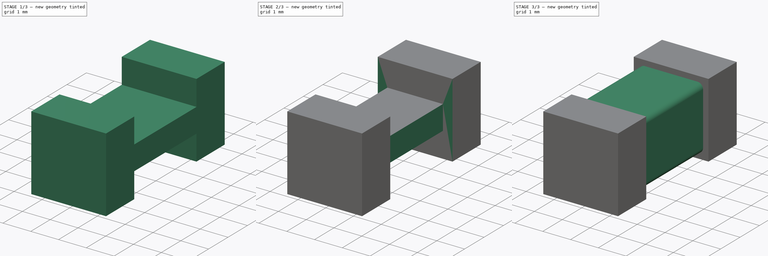
[diagram: build sequence overview — one tinted view per stage of 3, left to right]
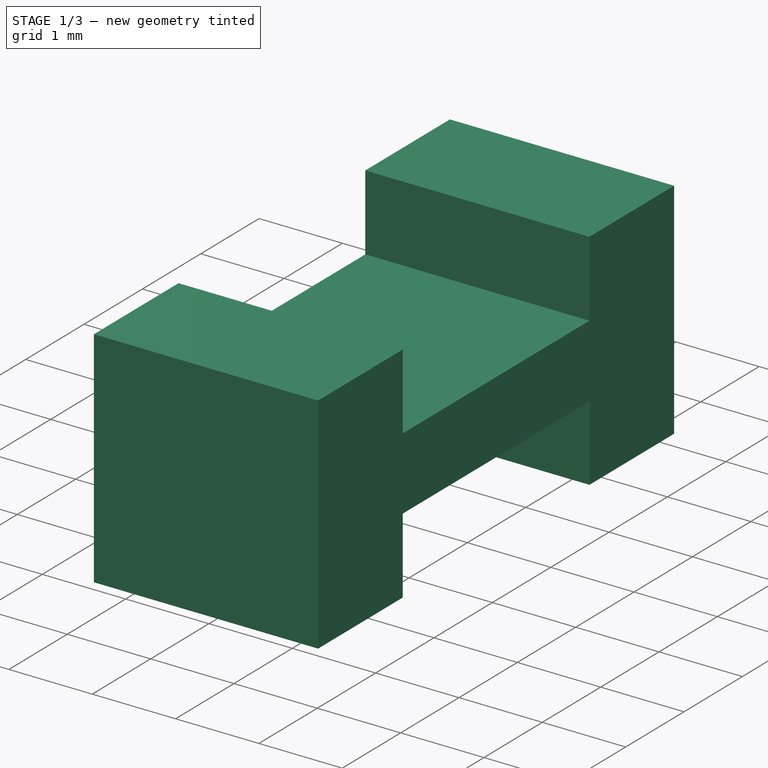
[diagram: stage 1 of 3 — iso view after this stage's code; geometry added in this stage tinted green]
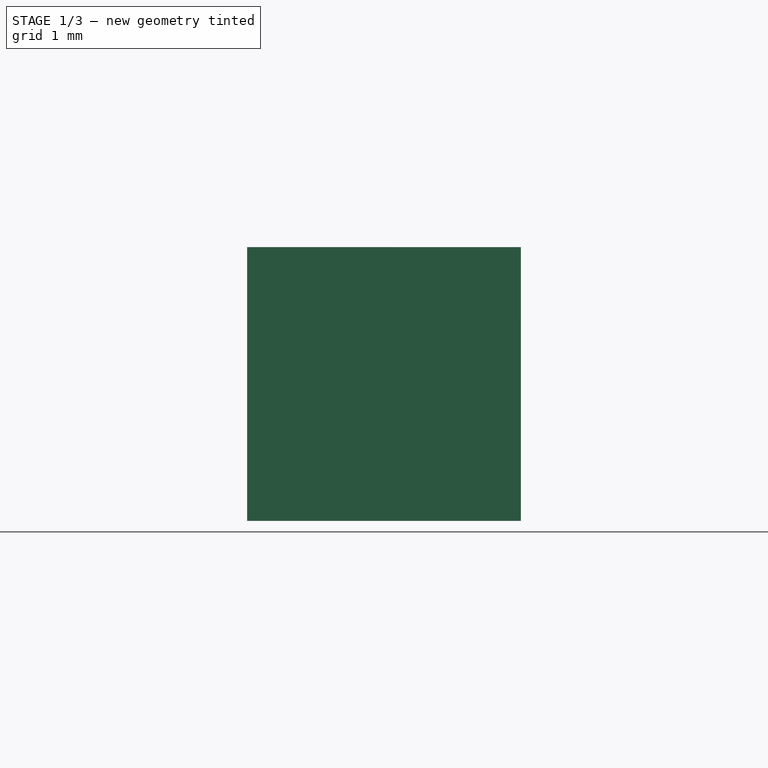
[diagram: stage 1 of 3 — front view after this stage's code; geometry added in this stage tinted green]
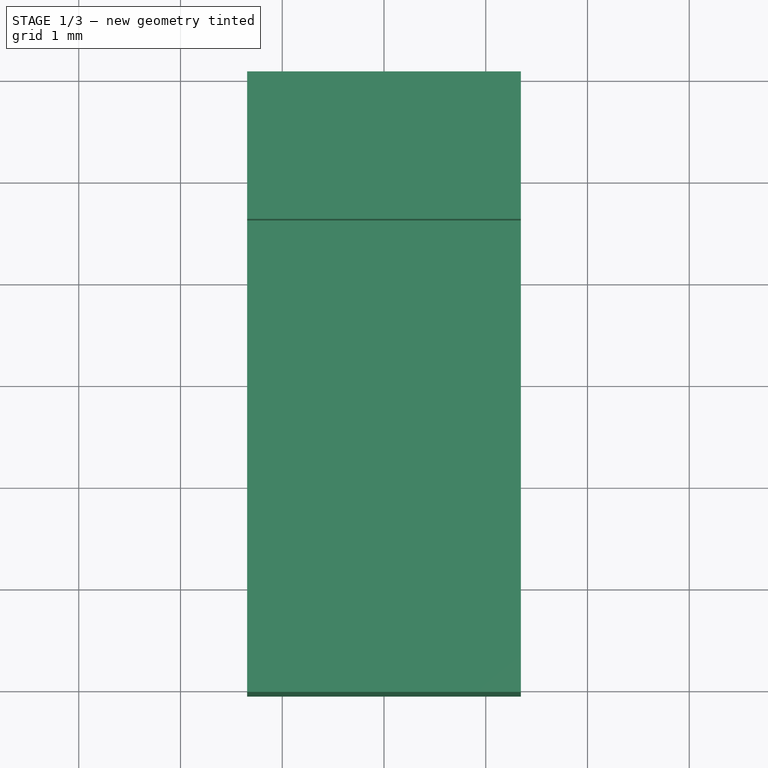
[diagram: stage 1 of 3 — top view after this stage's code; geometry added in this stage tinted green]
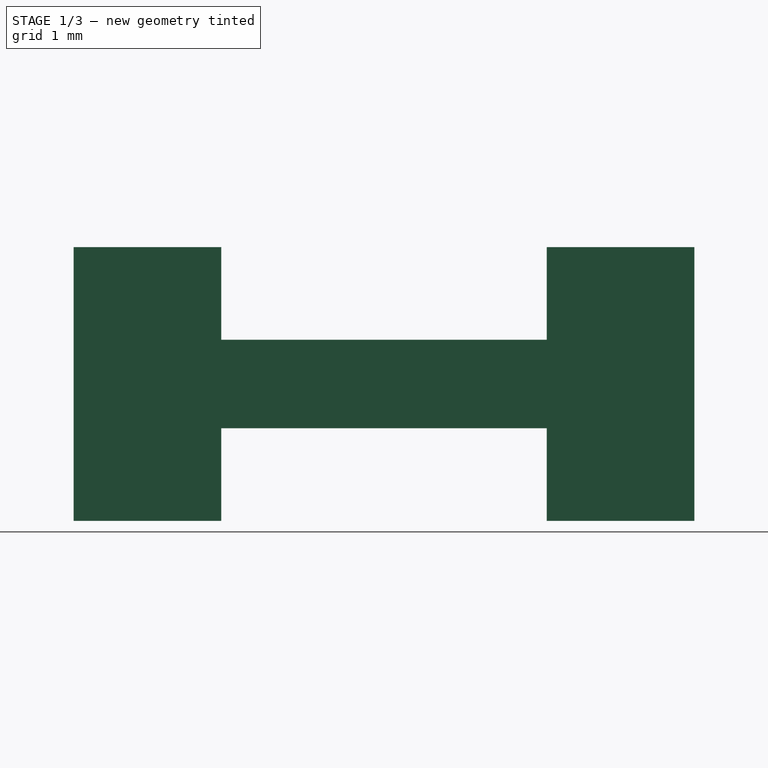
[diagram: stage 1 of 3 — right view after this stage's code; geometry added in this stage tinted green]
FCSTD DOCUMENT  (FreeCAD 0.19R)
Label: fusible
License: All rights reserved
LicenseURL: http://en.wikipedia.org/wiki/All_rights_reserved
objects: PartDesign::Mirrored×4, Sketcher::SketchObject×3, PartDesign::Pad×2, PartDesign::Body×2, PartDesign::MultiTransform×2, PartDesign::Fillet×1, PartDesign::Pocket×1, App::Part×1
note: 19 computed .brp shape members not serialized (recipe doc carries the construction recipe); baked Part::Feature solids carry a one-line shape summary decoded from their .brp

FEATURE [PartDesign::Body] Body
  Group = -> [Sketch,Pad,Fillet]
  Origin = -> Origin001
  Tip = -> Fillet
FEATURE [Sketcher::SketchObject] Sketch001
  FullyConstrained = true
  MapMode = 5
  Placement = pos=(0,0,0) rot=(0.57735,0.57735,0.57735;2.0944rad)
  Support = -> [YZ_Plane002]
  sketch-geometry (6):
    g0: LineSegment StartX=0 StartY=0 StartZ=0 EndX=-3.05 EndY=0 EndZ=0
    g1: LineSegment StartX=-3.05 StartY=0 StartZ=0 EndX=-3.05 EndY=1.345 EndZ=0
    g2: LineSegment StartX=-3.05 StartY=1.345 StartZ=0 EndX=-1.6 EndY=1.345 EndZ=0
    g3: LineSegment StartX=-1.6 StartY=1.345 StartZ=0 EndX=-1.6 EndY=0.435 EndZ=0
    g4: LineSegment StartX=-1.6 StartY=0.435 StartZ=0 EndX=0 EndY=0.435 EndZ=0
    g5: LineSegment StartX=0 StartY=0.435 StartZ=0 EndX=0 EndY=0 EndZ=0
  constraints (17):
    c: Coincident(g-1,g0)
    c: PointOnObject(g0,g-1)
    c: Coincident(g0,g1)
    c: Vertical(g1)
    c: Coincident(g1,g2)
    c: Horizontal(g2)
    c: Coincident(g2,g3)
    c: Vertical(g3)
    c: Coincident(g3,g4)
    c: PointOnObject(g4,g-2)
    c: Horizontal(g4)
    c: Coincident(g4,g5)
    c: Coincident(g5,g0)
    c: Distance(g2) = 1.45
    c: Distance(g1) = 1.345
    c: DistanceX(g3) = -1.6
    c: Distance(g3) = 0.91
FEATURE [PartDesign::Pad] Pad001
  Direction = (1,1,1)
  Length = 2.69
  Length2 = 100
  Midplane = true
  Placement = pos=(0,0,0) rot=(0.57735,0.57735,0.57735;2.0944rad)
  Profile = -> Sketch001
  Type = 0
FEATURE [Sketcher::SketchObject] Sketch002
  FullyConstrained = true
  MapMode = 5
  Placement = pos=(0,0,0) rot=(1,0,0;1.5708rad)
  Support = -> [XZ_Plane002]
  sketch-geometry (4):
    g0: LineSegment StartX=-1.4 StartY=1.15 StartZ=0 EndX=-1 EndY=1.15 EndZ=0
    g1: LineSegment StartX=-1 StartY=1.15 StartZ=0 EndX=-1 EndY=-1.15 EndZ=0
    g2: LineSegment StartX=-1 StartY=-1.15 StartZ=0 EndX=-1.4 EndY=-1.15 EndZ=0
    g3: LineSegment StartX=-1.4 StartY=-1.15 StartZ=0 EndX=-1.4 EndY=1.15 EndZ=0
  constraints (11):
    c: Coincident(g0,g1)
    c: Coincident(g1,g2)
    c: Coincident(g2,g3)
    c: Coincident(g3,g0)
    c: Horizontal(g0)
    c: Horizontal(g2)
    c: Vertical(g1)
    c: DistanceX(g1) = -1
    c: DistanceX(g2,g2) = 0.4
    c: Symmetric(g0,g2,g-1)
    c: Distance(g3) = 2.3
FEATURE [PartDesign::Mirrored] Mirrored
  MirrorPlane = -> Sketch001 [V_Axis]
  Placement = pos=(0,0,0) rot=(0.57735,0.57735,0.57735;2.0944rad)
FEATURE [PartDesign::Mirrored] Mirrored001
  MirrorPlane = -> XY_Plane002
  Placement = pos=(0,0,0) rot=(0.57735,0.57735,0.57735;2.0944rad)
FEATURE [PartDesign::MultiTransform] MultiTransform
  BaseFeature = -> Pad001
  Originals = -> [Pad001]
  Placement = pos=(0,0,0) rot=(0.57735,0.57735,0.57735;2.0944rad)
  Transformations = -> [Mirrored,Mirrored001]
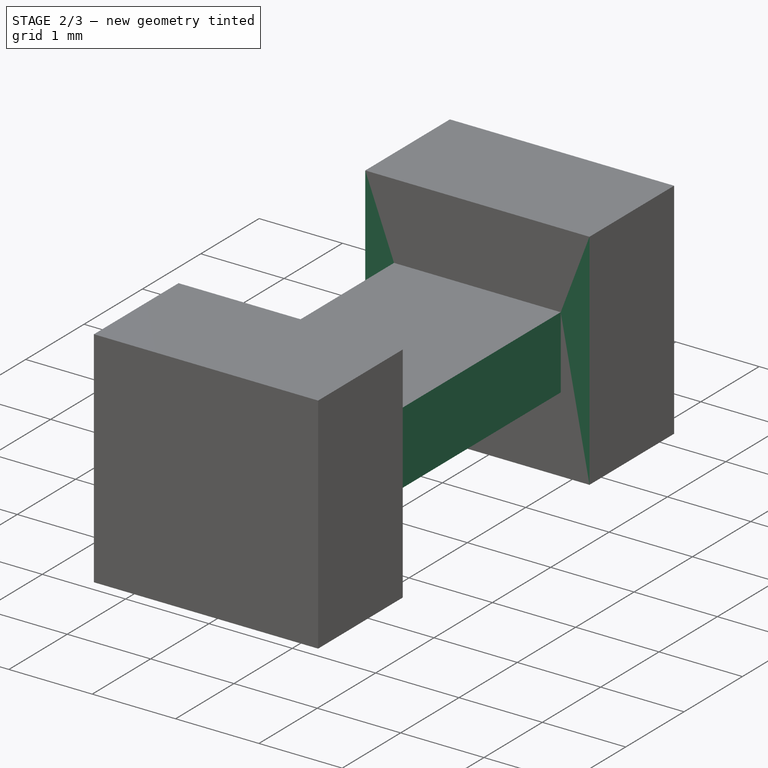
[diagram: stage 2 of 3 — iso view after this stage's code; geometry added in this stage tinted green]
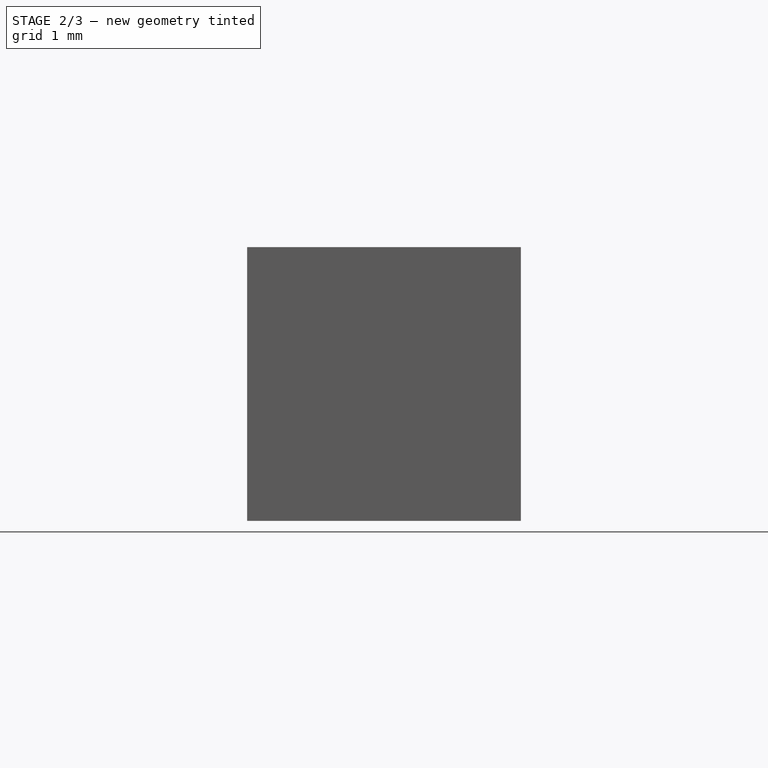
[diagram: stage 2 of 3 — front view after this stage's code; geometry added in this stage tinted green]
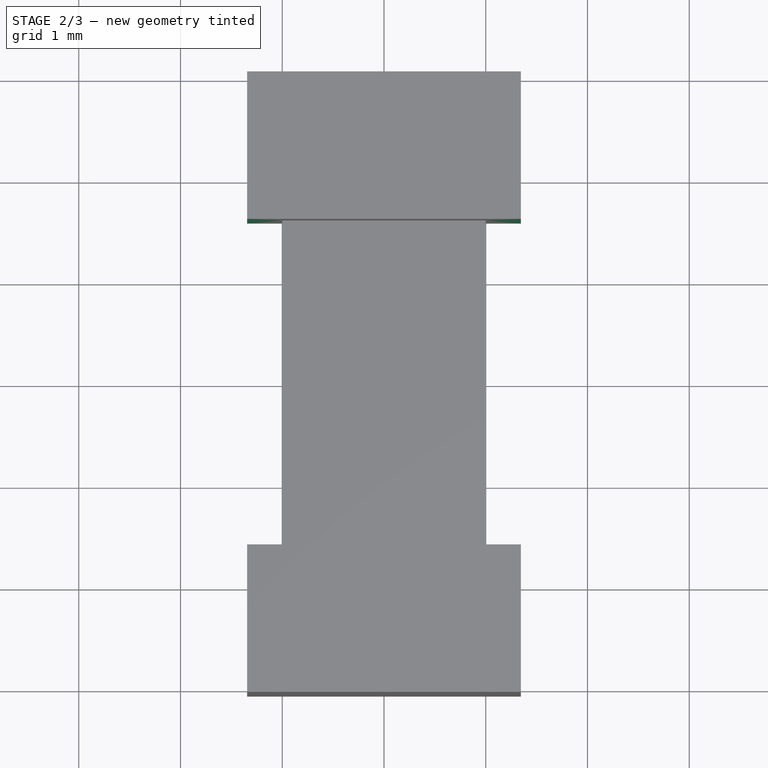
[diagram: stage 2 of 3 — top view after this stage's code; geometry added in this stage tinted green]
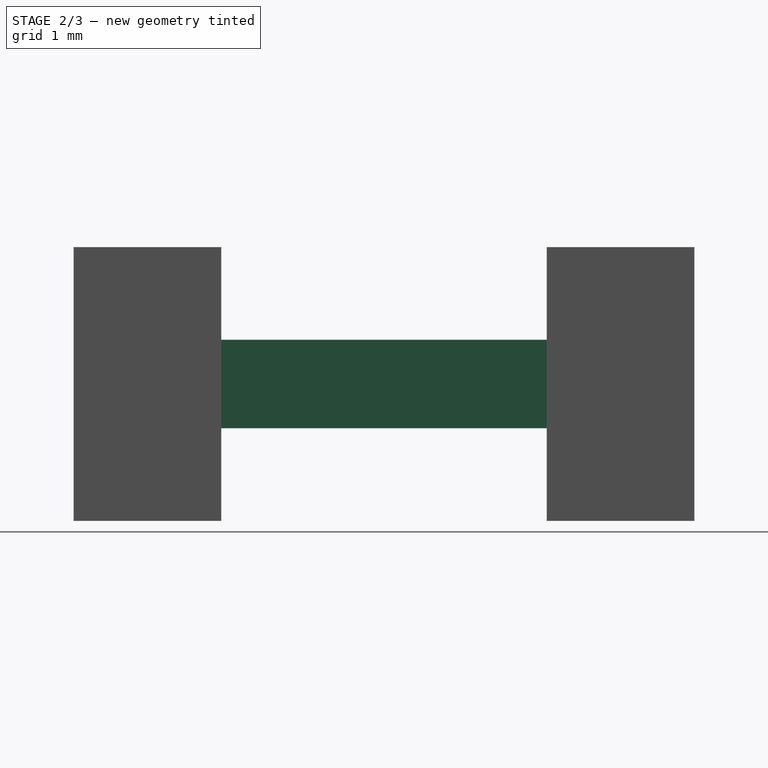
[diagram: stage 2 of 3 — right view after this stage's code; geometry added in this stage tinted green]
FEATURE [PartDesign::Pocket] Pocket
  BaseFeature = -> MultiTransform
  Length = 1.6
  Length2 = 100
  Placement = pos=(0,0,0) rot=(0.57735,0.57735,0.57735;2.0944rad)
  Profile = -> Sketch002
  Type = 0
FEATURE [PartDesign::Mirrored] Mirrored002
  MirrorPlane = -> Sketch002 [V_Axis]
  Placement = pos=(0,0,0) rot=(0.57735,0.57735,0.57735;2.0944rad)
FEATURE [PartDesign::Mirrored] Mirrored003
  MirrorPlane = -> XZ_Plane002
  Placement = pos=(0,0,0) rot=(0.57735,0.57735,0.57735;2.0944rad)
FEATURE [PartDesign::MultiTransform] MultiTransform001
  BaseFeature = -> Pocket
  Originals = -> [Pocket]
  Placement = pos=(0,0,0) rot=(0.57735,0.57735,0.57735;2.0944rad)
  Refine = true
  Transformations = -> [Mirrored002,Mirrored003]
FEATURE [PartDesign::Body] Body001
  Group = -> [Sketch001,Pad001,Sketch002,MultiTransform,Mirrored,Mirrored001,Pocket,MultiTransform001,Mirrored002,Mirrored003]
  Origin = -> Origin002
  Tip = -> MultiTransform001
FEATURE [App::Part] Part
  Group = -> [Body,Body001]
  Origin = -> Origin
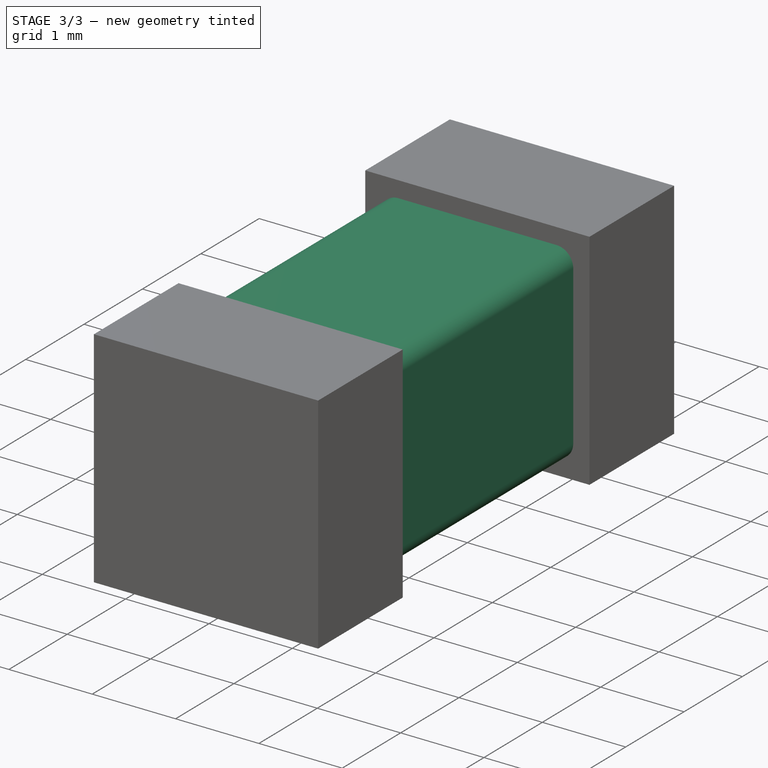
[diagram: stage 3 of 3 — iso view after this stage's code; geometry added in this stage tinted green]
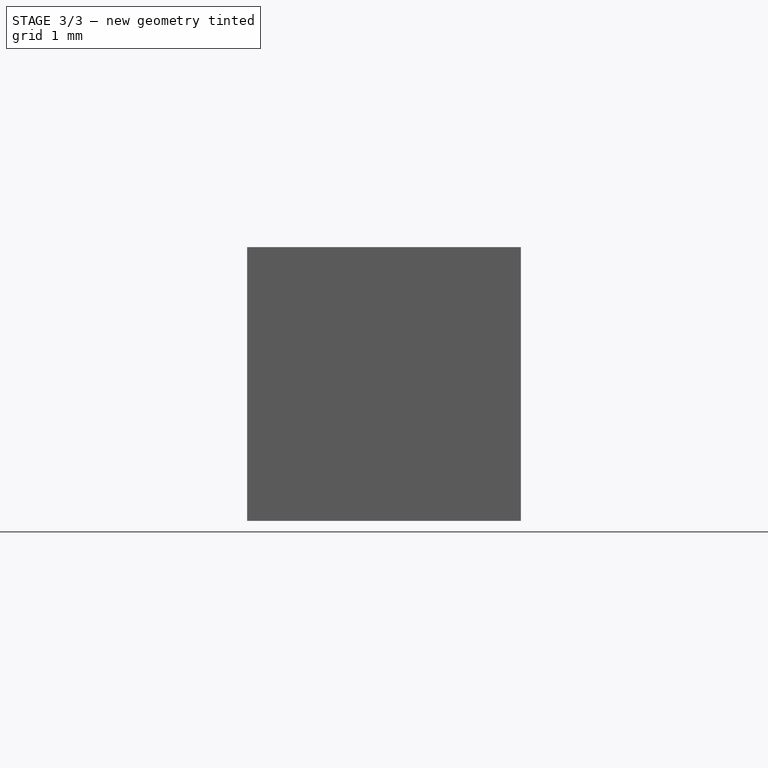
[diagram: stage 3 of 3 — front view after this stage's code; geometry added in this stage tinted green]
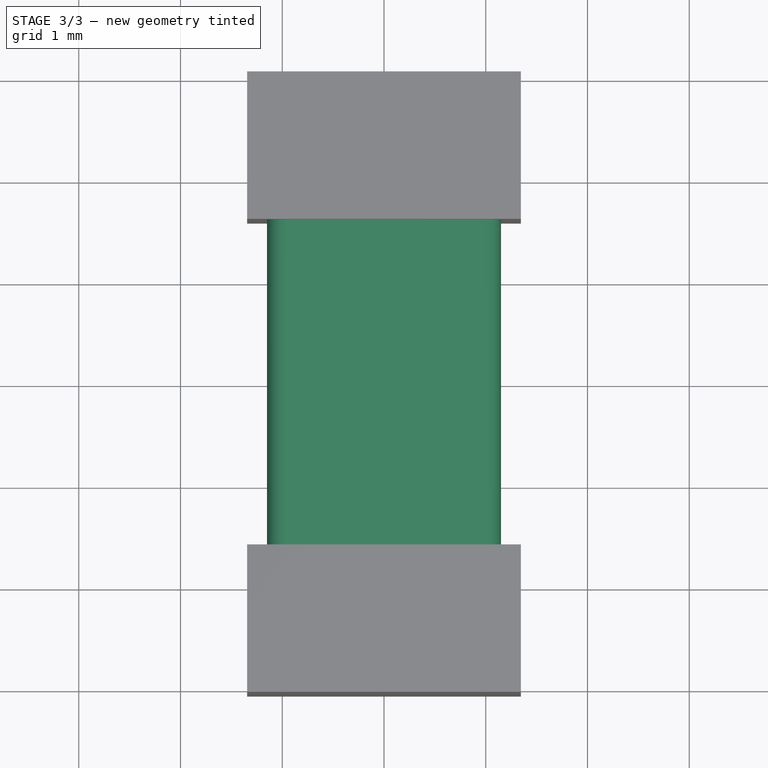
[diagram: stage 3 of 3 — top view after this stage's code; geometry added in this stage tinted green]
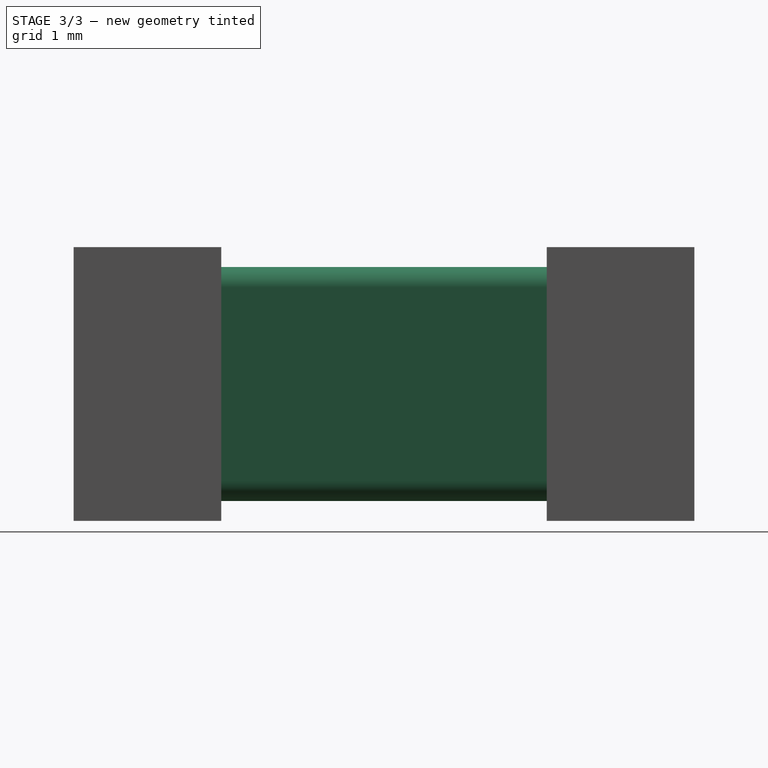
[diagram: stage 3 of 3 — right view after this stage's code; geometry added in this stage tinted green]
FEATURE [Sketcher::SketchObject] Sketch
  FullyConstrained = true
  MapMode = 5
  Placement = pos=(0,0,0) rot=(1,0,0;1.5708rad)
  Support = -> [XZ_Plane001]
  sketch-geometry (4):
    g0: LineSegment StartX=-1.15 StartY=1.15 StartZ=0 EndX=1.15 EndY=1.15 EndZ=0
    g1: LineSegment StartX=1.15 StartY=1.15 StartZ=0 EndX=1.15 EndY=-1.15 EndZ=0
    g2: LineSegment StartX=1.15 StartY=-1.15 StartZ=0 EndX=-1.15 EndY=-1.15 EndZ=0
    g3: LineSegment StartX=-1.15 StartY=-1.15 StartZ=0 EndX=-1.15 EndY=1.15 EndZ=0
  constraints (11):
    c: Coincident(g0,g1)
    c: Coincident(g1,g2)
    c: Coincident(g2,g3)
    c: Coincident(g3,g0)
    c: Horizontal(g0)
    c: Horizontal(g2)
    c: Vertical(g1)
    c: Vertical(g3)
    c: Symmetric(g1,g0,g-1)
    c: Equal(g0,g1)
    c: DistanceY(g1,g1) = 2.3
FEATURE [PartDesign::Pad] Pad
  Direction = (1,1,1)
  Length = 3.2
  Length2 = 100
  Midplane = true
  Placement = pos=(0,0,0) rot=(1,0,0;1.5708rad)
  Profile = -> Sketch
  Type = 0
FEATURE [PartDesign::Fillet] Fillet
  Base = -> Pad [Edge1,Edge2,Edge5,Edge8]
  BaseFeature = -> Pad
  Placement = pos=(0,0,0) rot=(1,0,0;1.5708rad)
  Radius = 0.2
  Refine = true
  SupportTransform = false
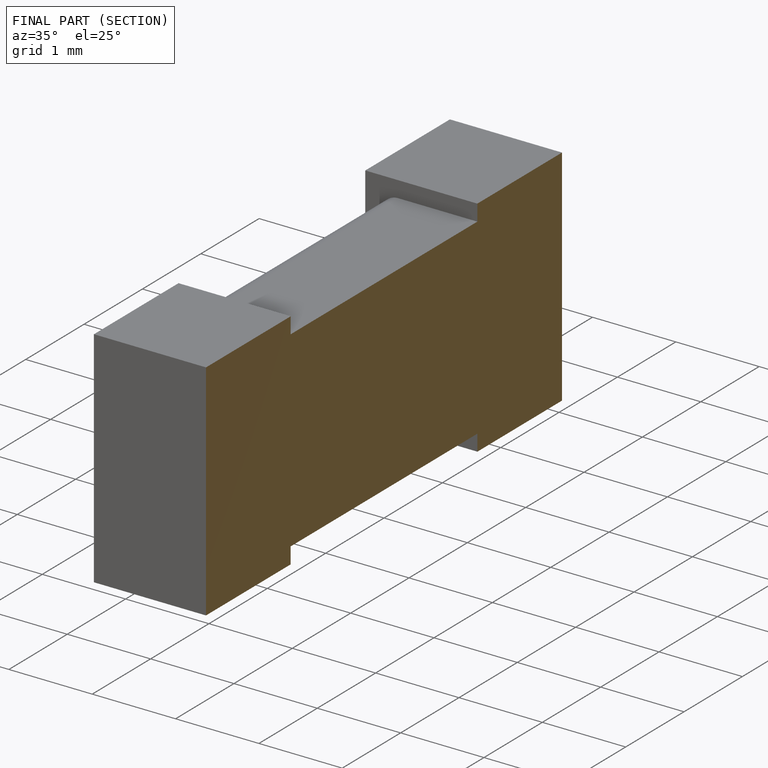
[diagram: finished part — half-section view (interior)]
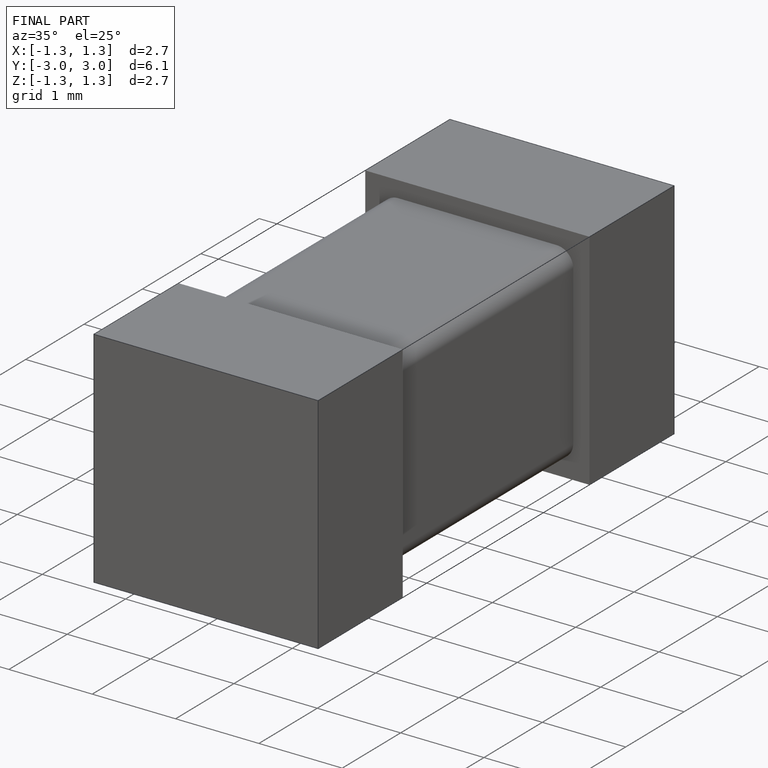
[diagram: finished part — iso view with bounding-box wireframe]
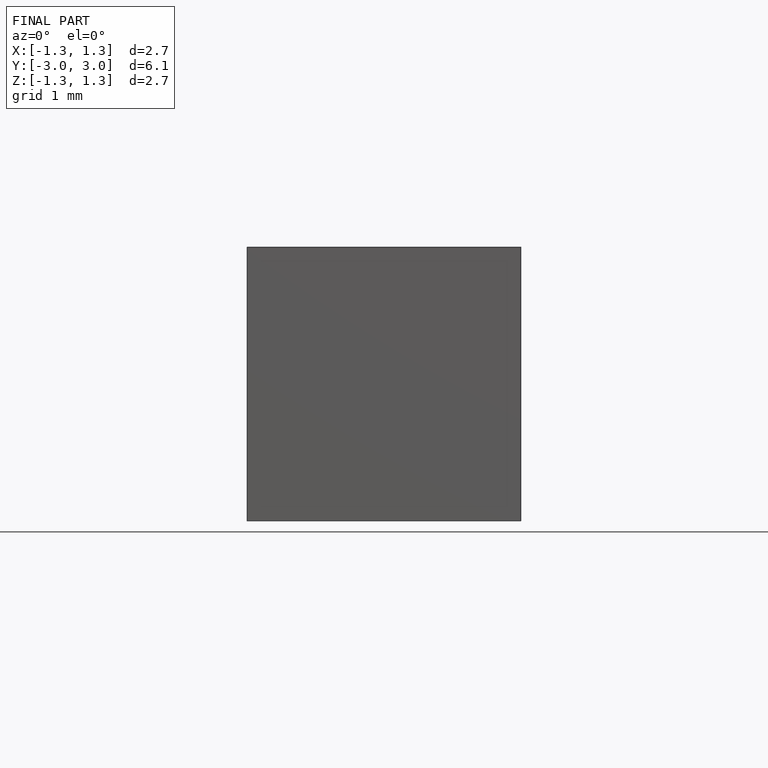
[diagram: finished part — front view with bounding-box wireframe]
